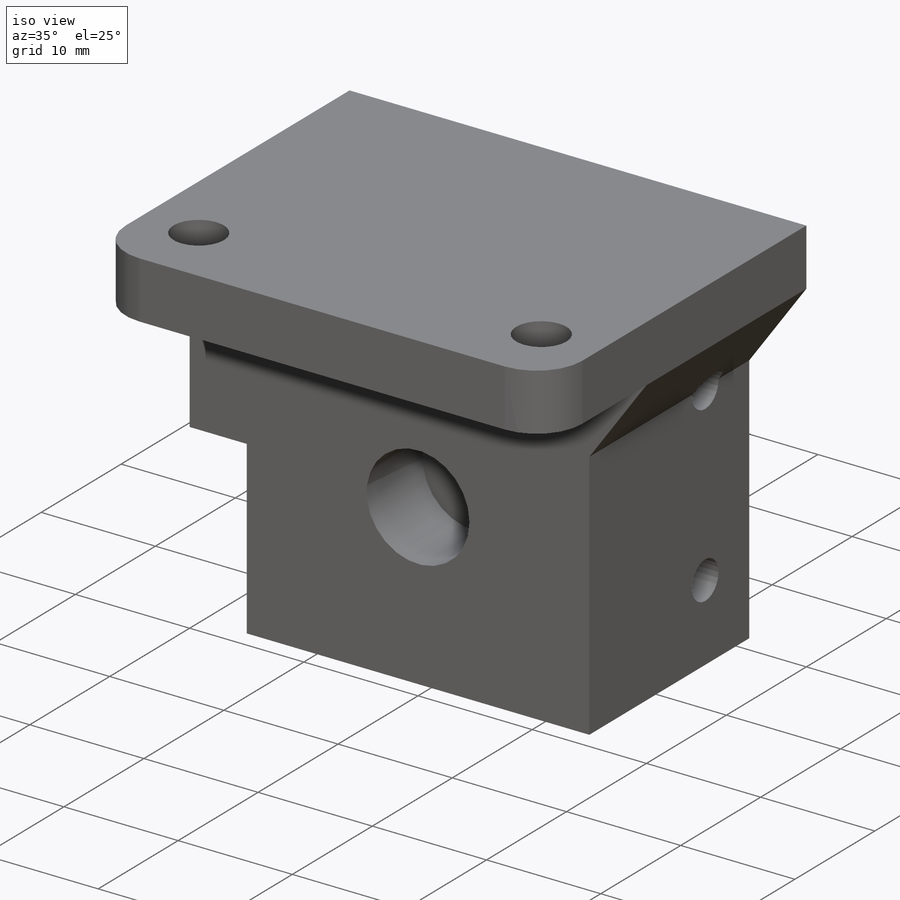
[diagram: iso view]
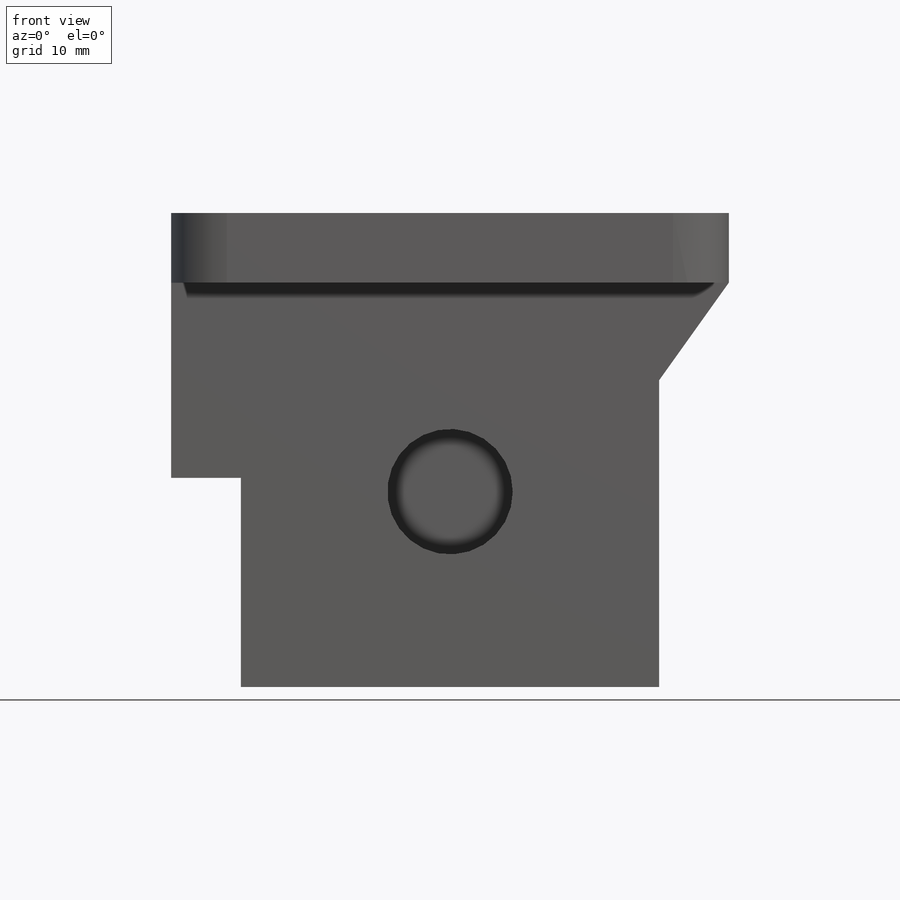
[diagram: front view]
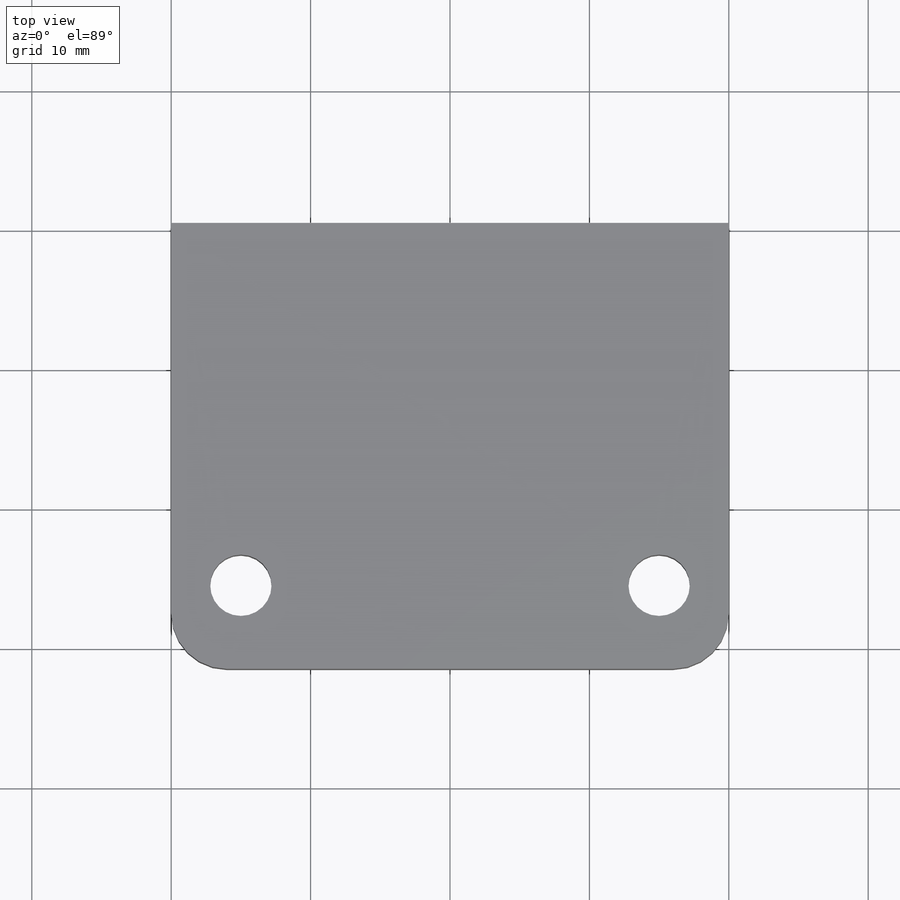
[diagram: top view]
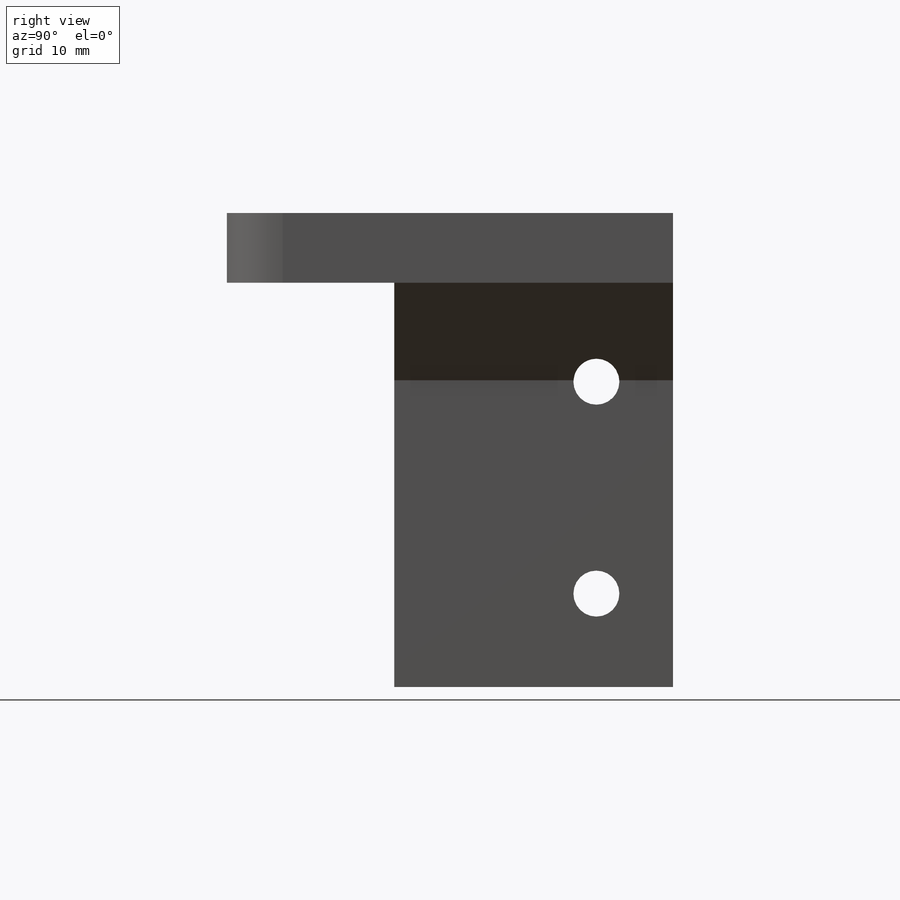
[diagram: right view]
SOLIDWORKS PART (.sldprt)
format: sldprt  version: not decoded by parser v0  size: 268,800 bytes
history: native  units: mm
features: sketch x10, cut_extrude x6, plane x3, extrude x3, material x1, fillet x1 (+8 scaffold rows collapsed)
feature tree (32):
  scaffold x8  (default folders/planes/origin — collapsed)
  material  "Matériau <non spécifié>"
  plane  "Plan de face"
  plane  "Plan de dessus"
  plane  "Plan de droite"
  sketch  "Esquisse1"  dims[D1=40.0mm D2=34.0mm D3=17.0mm D4=20.0mm]
  extrude  "Boss.-Extru.1"  Depth=20mm
  sketch  "Esquisse2"  dims[D1=5.0mm]
  extrude  "Boss.-Extru.3"  Depth=20mm
  sketch  "Esquisse4"  dims[D1=9.0mm D2=20.0mm D3=14.0mm]
  cut_extrude  "Enlèv. mat.-Extru.1"  [1 undecoded]
  sketch  "Esquisse5"  dims[D1=16.2mm D2=14.0mm]
  cut_extrude  "Enlèv. mat.-Extru.2"  Depth=12mm
  sketch  "Esquisse6"  dims[c1.D1=5.0mm c1.D2=8.0mm c1.D3=10.0mm c1.D4=22.0mm c2.D2=30.0mm c2.D5=15.0mm]
  cut_extrude  "Enlèv. mat.-Extru.3"  [1 undecoded]
  sketch  "Esquisse8"  dims[D2=4.4mm D3=4.4mm D1=30.0mm D4=14.0mm D5=5.0mm D6=14.0mm]
  cut_extrude  "Enlèv. mat.-Extru.5"  [1 undecoded]
  sketch  "Esquisse10"
  extrude  "Boss.-Extru.4"  Depth=1mm
  sketch  "Esquisse11"  dims[D1=8.0mm]
  cut_extrude  "Enlèv. mat.-Extru.6"  [1 undecoded]
  fillet  "Congé6"  Radius=4mm
  sketch  "Esquisse15"
  sketch  "Esquisse14"  dims[D1=3.3mm D2=3.3mm D3=15.2mm D4=6.5mm D5=6.5mm D6=16.0mm]
  cut_extrude  "Enlèv. mat.-Extru.7"  [1 undecoded]
decode coverage: 13 of 20 modeling features carry decoded parameters
note: 5 parameter values undecoded
summary: no parameter record found for 5 features
note: suppression state not decoded; provenance and decode notes live in map.json
